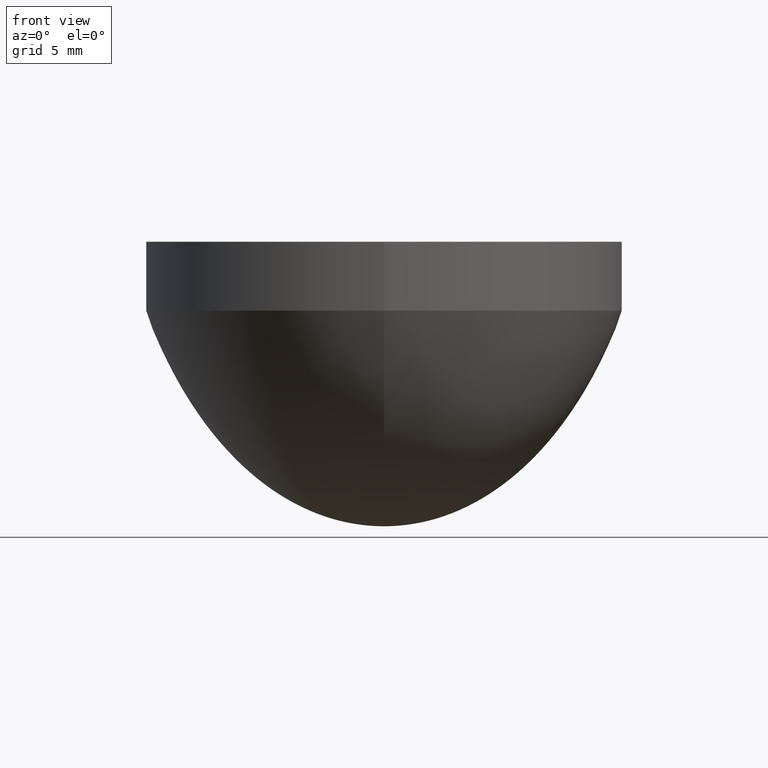
[diagram: clean part render]
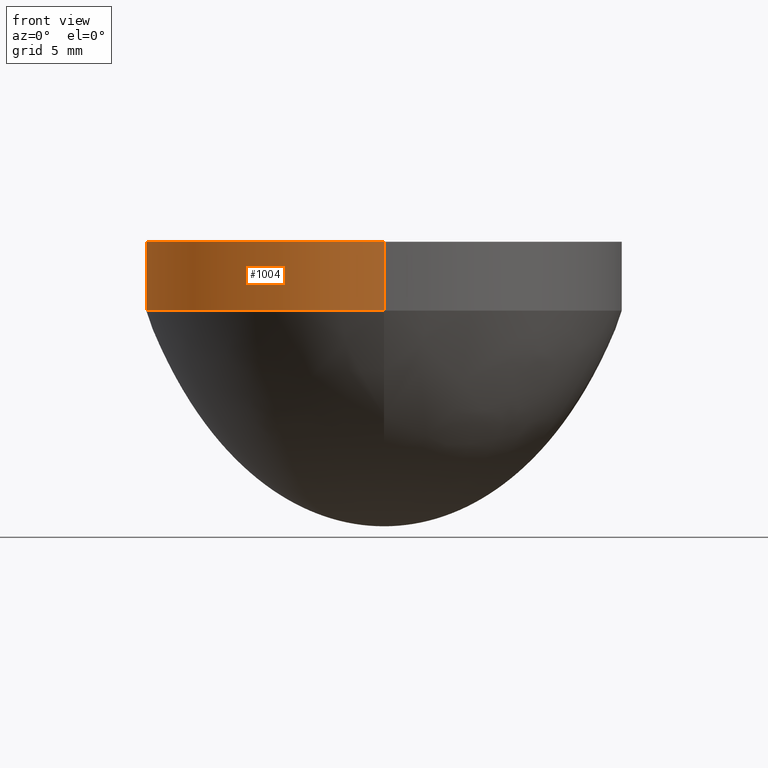
[diagram: same view with one face highlighted and labeled with its STEP entity id]
A machine part, front view. The second image highlights one B-rep face of the part: STEP entity #1004.
In plain terms, the highlighted cylindrical surface (partial cylindrical patch) has radius 12.5 mm, axis along (0, 0, -1).
Its self-contained STEP definition (entity closure, byte-faithful):
#17 = VECTOR ( 'NONE', #605, 1000.000000000000000 ) ;
#33 = DIRECTION ( 'NONE',  ( 0.000000000000000000, 1.000000000000000000, 0.000000000000000000 ) ) ;
#79 = VERTEX_POINT ( 'NONE', #557 ) ;
#107 = EDGE_LOOP ( 'NONE', ( #537, #941, #816, #999 ) ) ;
#180 = FACE_OUTER_BOUND ( 'NONE', #107, .T. ) ;
#187 = VERTEX_POINT ( 'NONE', #407 ) ;
#229 = VERTEX_POINT ( 'NONE', #934 ) ;
#268 = DIRECTION ( 'NONE',  ( 0.000000000000000000, 1.000000000000000000, 0.000000000000000000 ) ) ;
#270 = AXIS2_PLACEMENT_3D ( 'NONE', #862, #623, #33 ) ;
#305 = EDGE_CURVE ( 'NONE', #79, #187, #649, .T. ) ;
#407 = CARTESIAN_POINT ( 'NONE',  ( 1.530808498934191521E-15, -12.50000000000000000, 11.29451095824919982 ) ) ;
#493 = EDGE_CURVE ( 'NONE', #906, #79, #709, .T. ) ;
#525 = LINE ( 'NONE', #531, #17 ) ;
#531 = CARTESIAN_POINT ( 'NONE',  ( 1.530808498934191521E-15, -12.50000000000000000, 15.64499999999999957 ) ) ;
#537 = ORIENTED_EDGE ( 'NONE', *, *, #885, .F. ) ;
#557 = CARTESIAN_POINT ( 'NONE',  ( 0.000000000000000000, 12.50000000000000000, 11.29451095824919982 ) ) ;
#591 = DIRECTION ( 'NONE',  ( 0.000000000000000000, 0.000000000000000000, 1.000000000000000000 ) ) ;
#598 = AXIS2_PLACEMENT_3D ( 'NONE', #1016, #591, #268 ) ;
#605 = DIRECTION ( 'NONE',  ( 0.000000000000000000, 0.000000000000000000, -1.000000000000000000 ) ) ;
#618 = CARTESIAN_POINT ( 'NONE',  ( 0.000000000000000000, 0.000000000000000000, 15.64499999999999957 ) ) ;
#623 = DIRECTION ( 'NONE',  ( 0.000000000000000000, 0.000000000000000000, -1.000000000000000000 ) ) ;
#649 = CIRCLE ( 'NONE', #598, 12.50000000000000000 ) ;
#666 = CIRCLE ( 'NONE', #270, 12.50000000000000000 ) ;
#701 = CYLINDRICAL_SURFACE ( 'NONE', #735, 12.50000000000000000 ) ;
#709 = LINE ( 'NONE', #869, #969 ) ;
#735 = AXIS2_PLACEMENT_3D ( 'NONE', #618, #847, #952 ) ;
#782 = DIRECTION ( 'NONE',  ( 0.000000000000000000, 0.000000000000000000, -1.000000000000000000 ) ) ;
#816 = ORIENTED_EDGE ( 'NONE', *, *, #493, .T. ) ;
#847 = DIRECTION ( 'NONE',  ( 0.000000000000000000, 0.000000000000000000, -1.000000000000000000 ) ) ;
#862 = CARTESIAN_POINT ( 'NONE',  ( 0.000000000000000000, 0.000000000000000000, 14.90000000000000036 ) ) ;
#869 = CARTESIAN_POINT ( 'NONE',  ( 0.000000000000000000, 12.50000000000000000, 15.64499999999999957 ) ) ;
#885 = EDGE_CURVE ( 'NONE', #229, #187, #525, .T. ) ;
#906 = VERTEX_POINT ( 'NONE', #1027 ) ;
#920 = EDGE_CURVE ( 'NONE', #229, #906, #666, .T. ) ;
#934 = CARTESIAN_POINT ( 'NONE',  ( 1.530808498934191521E-15, -12.50000000000000000, 14.90000000000000036 ) ) ;
#941 = ORIENTED_EDGE ( 'NONE', *, *, #920, .T. ) ;
#952 = DIRECTION ( 'NONE',  ( 0.000000000000000000, 1.000000000000000000, 0.000000000000000000 ) ) ;
#969 = VECTOR ( 'NONE', #782, 1000.000000000000000 ) ;
#999 = ORIENTED_EDGE ( 'NONE', *, *, #305, .T. ) ;
#1004 = ADVANCED_FACE ( 'NONE', ( #180 ), #701, .T. ) ;
#1016 = CARTESIAN_POINT ( 'NONE',  ( 0.000000000000000000, 0.000000000000000000, 11.29451095824919982 ) ) ;
#1027 = CARTESIAN_POINT ( 'NONE',  ( 0.000000000000000000, 12.50000000000000000, 14.90000000000000036 ) ) ;